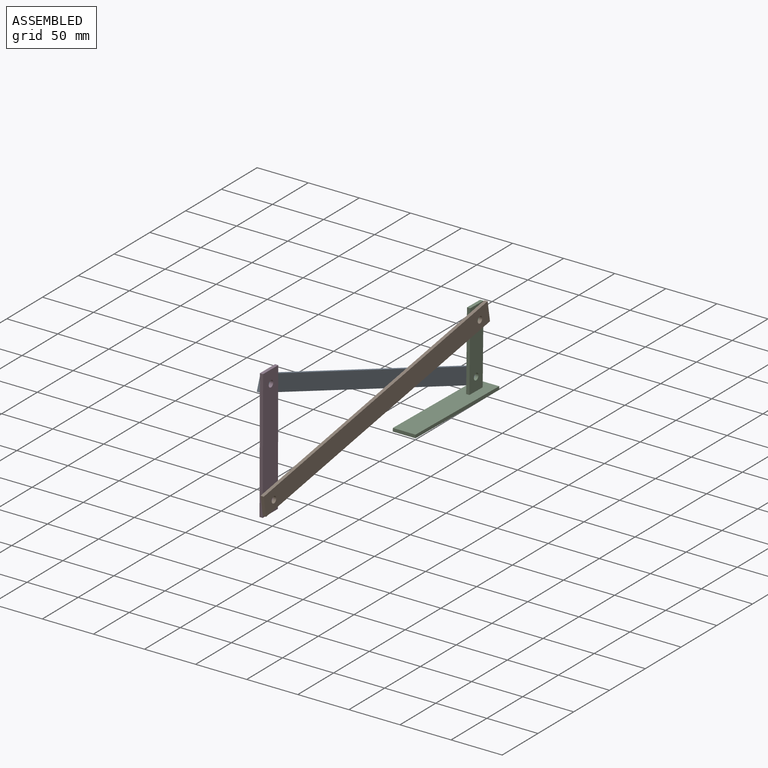
[diagram: assembled view]
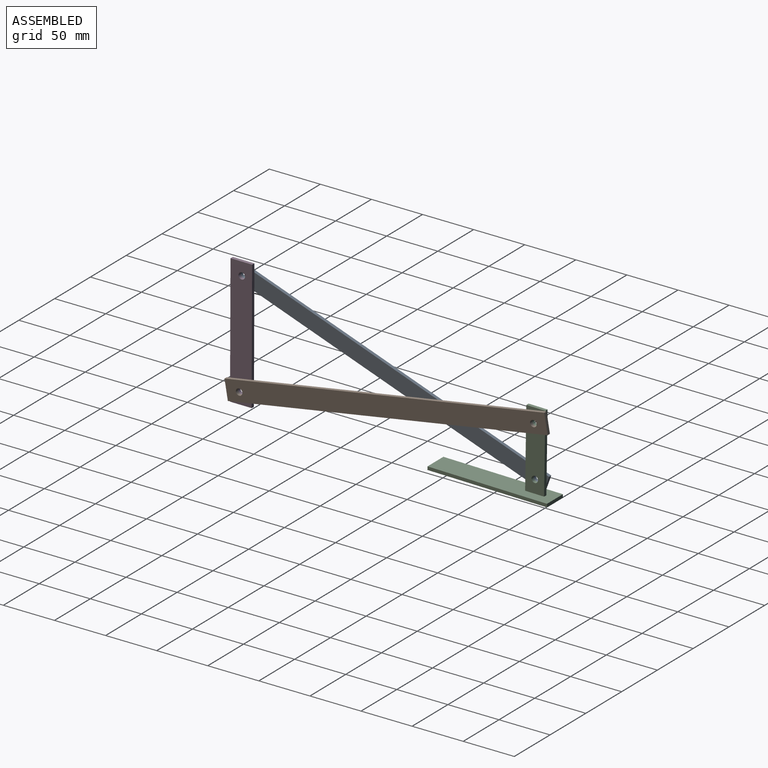
[diagram: assembled view, second angle]
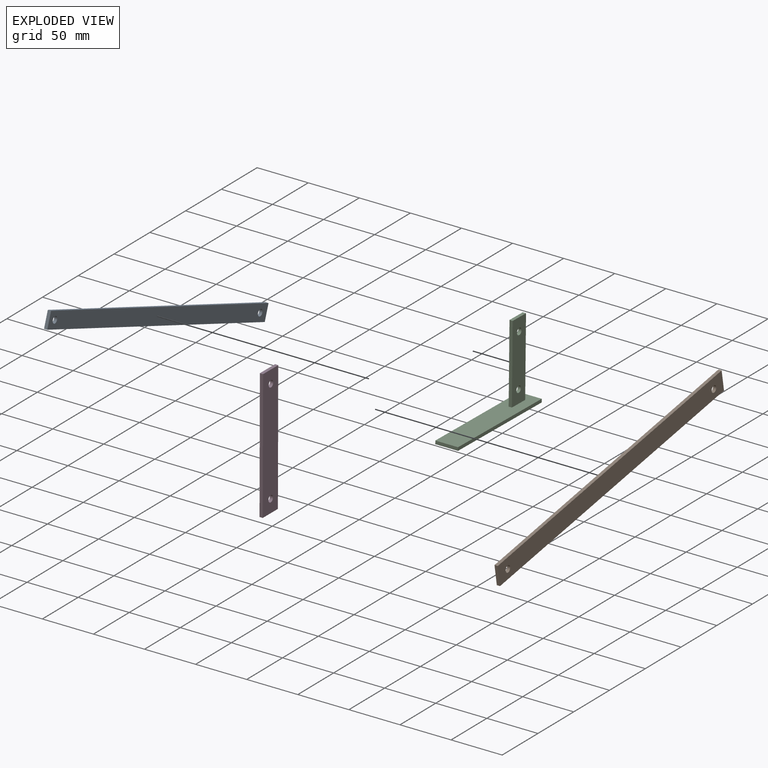
[diagram: exploded view]
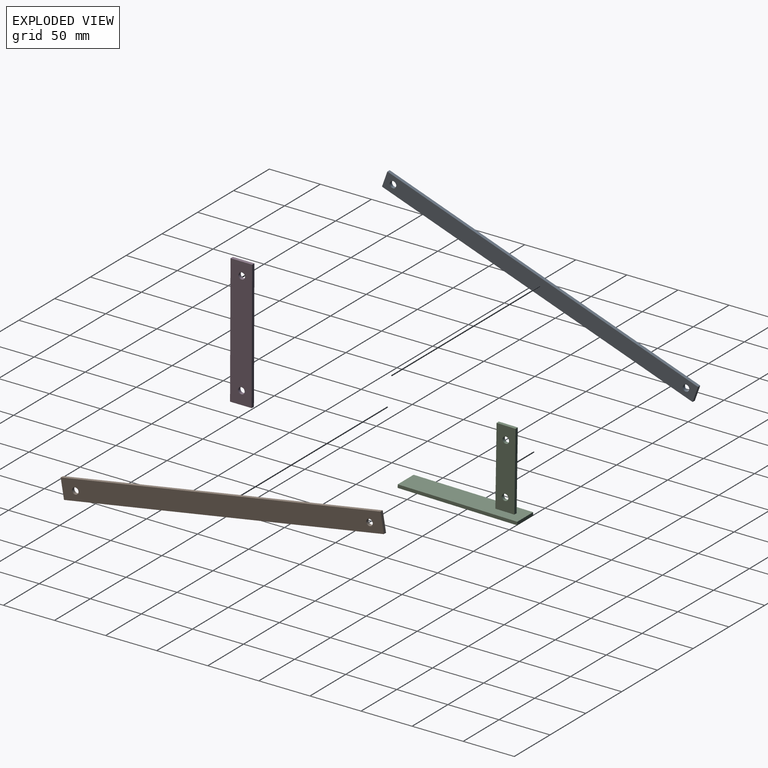
[diagram: exploded view, second angle]
ASSEMBLY  parts=4 mates=7
PART A: 8 faces, bbox 3.2x323x15.7 mm
  f0: plane 323.02x3.18mm, normal (0,0,1), area 1025.6mm2, adj f1,f5,f6,f7
  f1: plane 15.66x3.18mm, normal (0,-1,0), area 49.7mm2, adj f0,f2,f6,f7
  f2: plane 323.02x3.18mm, normal (0,0,-1), area 1025.6mm2, adj f1,f5,f6,f7
  f3: cylinder r=3.17mm len=6.35mm, axis (-1,0,0), area 63.3mm2, adj f6,f7
  f4: cylinder r=3.17mm len=6.35mm, axis (-1,0,0), area 63.3mm2, adj f6,f7
  f5: plane 15.66x3.18mm, normal (0,1,0), area 49.7mm2, adj f0,f2,f6,f7
  f6: plane 323.02x15.66mm, normal (1,0,0), area 4996.6mm2, adj f0,f1,f2,f3,f4,f5
  f7: plane 323.02x15.66mm, normal (-1,0,0), area 4996.6mm2, adj f0,f1,f2,f3,f4,f5
PART B: 8 faces, bbox 3.2x317.5x19.3 mm
  f0: plane 317.5x3.18mm, normal (0,0,1), area 1008.1mm2, adj f1,f5,f6,f7
  f1: plane 19.29x3.18mm, normal (0,-1,0), area 61.3mm2, adj f0,f2,f6,f7
  f2: plane 317.5x3.18mm, normal (0,0,-1), area 1008.1mm2, adj f1,f5,f6,f7
  f3: cylinder r=3.17mm len=6.35mm, axis (-1,0,0), area 63.3mm2, adj f6,f7
  f4: cylinder r=3.17mm len=6.35mm, axis (-1,0,0), area 63.3mm2, adj f6,f7
  f5: plane 19.29x3.18mm, normal (0,1,0), area 61.3mm2, adj f0,f2,f6,f7
  f6: plane 317.5x19.29mm, normal (1,0,0), area 6062.6mm2, adj f0,f1,f2,f3,f4,f5
  f7: plane 317.5x19.29mm, normal (-1,0,0), area 6062.6mm2, adj f0,f1,f2,f3,f4,f5
PART C: 13 faces, bbox 22.2x117x79.4 mm
  f0: plane 76.2x3.18mm, normal (0,-1,0), area 241.9mm2, adj f1,f5,f6,f8
  f1: plane 18.56x3.18mm, normal (0,0,-1), area 58.9mm2, adj f0,f4,f5,f6
  f2: cylinder r=3.17mm len=6.35mm, axis (-1,0,0), area 63.3mm2, adj f5,f6
  f3: cylinder r=3.17mm len=6.35mm, axis (-1,0,0), area 63.3mm2, adj f5,f6
  f4: plane 76.2x3.18mm, normal (0,1,0), area 241.9mm2, adj f1,f5,f6,f8
  f5: plane 76.2x18.56mm, normal (1,0,0), area 1351mm2, adj f0,f1,f2,f3,f4,f8
  f6: plane 76.2x18.56mm, normal (-1,0,0), area 1351mm2, adj f0,f1,f2,f3,f4,f8
  f7: plane 22.23x3.18mm, normal (0,-1,0), area 70.6mm2, adj f8,f10,f11,f12
  f8: plane 116.99x22.23mm, normal (0,0,-1), area 2541.1mm2, adj f0,f4,f5,f6,f7,f9,f11,f12
  f9: plane 22.23x3.18mm, normal (0,1,0), area 70.6mm2, adj f8,f10,f11,f12
  f10: plane 116.99x22.23mm, normal (0,0,1), area 2600mm2, adj f7,f9,f11,f12
  f11: plane 116.99x3.18mm, normal (1,0,0), area 371.4mm2, adj f7,f8,f9,f10
  f12: plane 116.99x3.18mm, normal (-1,0,0), area 371.4mm2, adj f7,f8,f9,f10
PART D: 8 faces, bbox 3.2x21.2x127 mm
  f0: plane 21.16x3.18mm, normal (0,0,1), area 67.2mm2, adj f1,f5,f6,f7
  f1: plane 127x3.18mm, normal (0,-1,0), area 403.2mm2, adj f0,f2,f6,f7
  f2: plane 21.16x3.18mm, normal (0,0,-1), area 67.2mm2, adj f1,f5,f6,f7
  f3: cylinder r=3.17mm len=6.35mm, axis (-1,0,0), area 63.3mm2, adj f6,f7
  f4: cylinder r=3.17mm len=6.35mm, axis (-1,0,0), area 63.3mm2, adj f6,f7
  f5: plane 127x3.18mm, normal (0,1,0), area 403.2mm2, adj f0,f2,f6,f7
  f6: plane 127x21.16mm, normal (1,0,0), area 2623.4mm2, adj f0,f1,f2,f3,f4,f5
  f7: plane 127x21.16mm, normal (-1,0,0), area 2623.4mm2, adj f0,f1,f2,f3,f4,f5
PLACE A rot(axis=(1,0,0),160.2deg) t=(-108.73,303.92,76.42)mm
PLACE B rot(axis=(1,0,0),9.7deg) t=(-102.38,104.84,50.07)mm
PLACE C rot(axis=(1,0,0),179.1deg) t=(-105.55,538.88,-14.55)mm
PLACE D rot(axis=(-1,0,0),0.2deg) t=(-105.55,256.2,-20.57)mm fixed
MATE planar A.f6 <-> C.f6  axis (1,0,0) through (-105.55,245.4,-3.64)mm
MATE planar A.f6 <-> D.f7  axis (1,0,0) through (-105.55,245.4,-3.64)mm
MATE cylindrical C.f3 <-> A.f3  axis (-1,0,0) through (-105.55,388.33,-55.04)mm
MATE cylindrical D.f3 <-> A.f4  axis (-1,0,0) through (-105.55,101.55,48.21)mm
MATE cylindrical B.f4 <-> C.f2  axis (-1,0,0) through (-102.38,389.12,-4.24)mm
MATE planar B.f7 <-> D.f6  axis (-1,0,0) through (-102.38,245.02,-28.03)mm
MATE cylindrical B.f3 <-> D.f4  axis (1,0,0) through (-99.2,101.19,-53.39)mm
